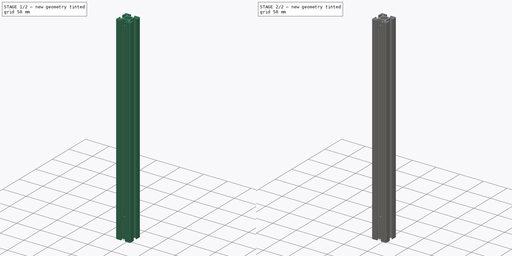
[diagram: build sequence overview — one tinted view per stage of 2, left to right]
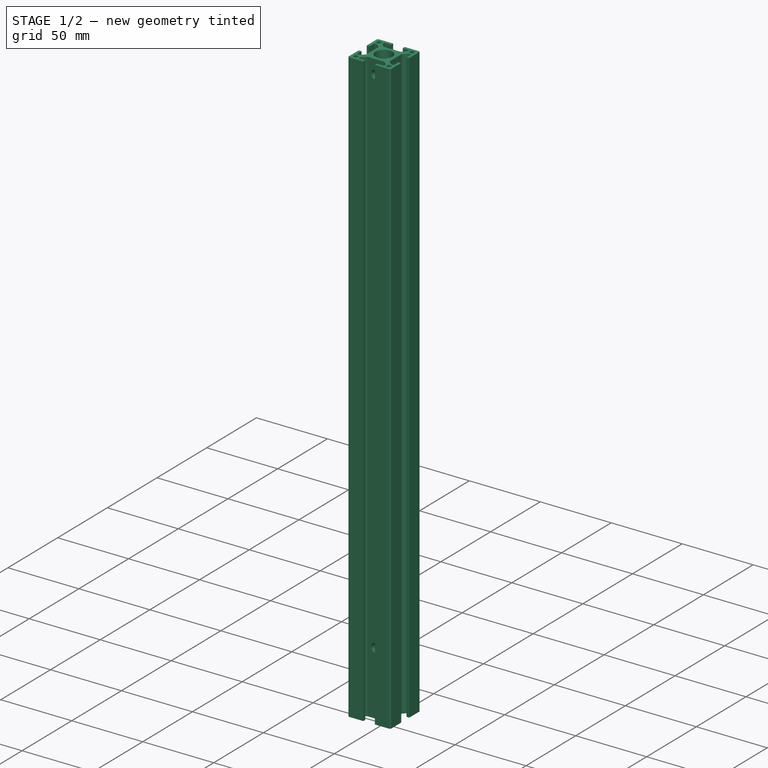
[diagram: stage 1 of 2 — iso view after this stage's code; geometry added in this stage tinted green]
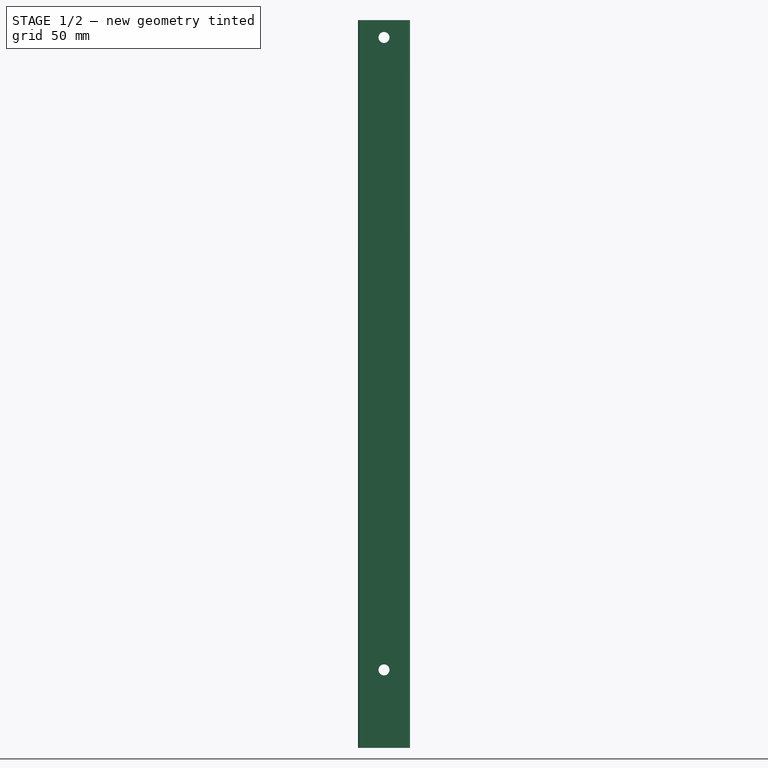
[diagram: stage 1 of 2 — front view after this stage's code; geometry added in this stage tinted green]
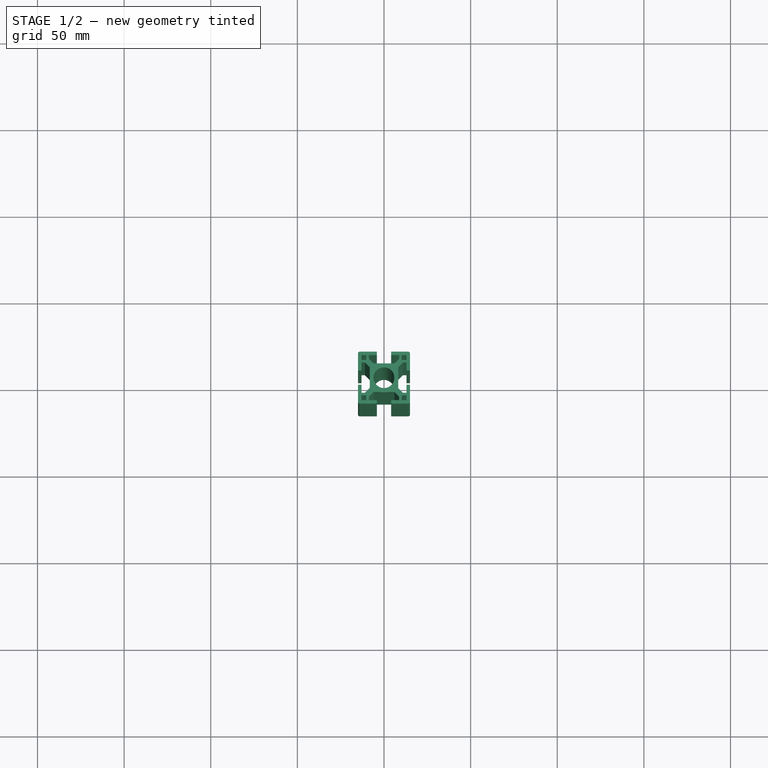
[diagram: stage 1 of 2 — top view after this stage's code; geometry added in this stage tinted green]
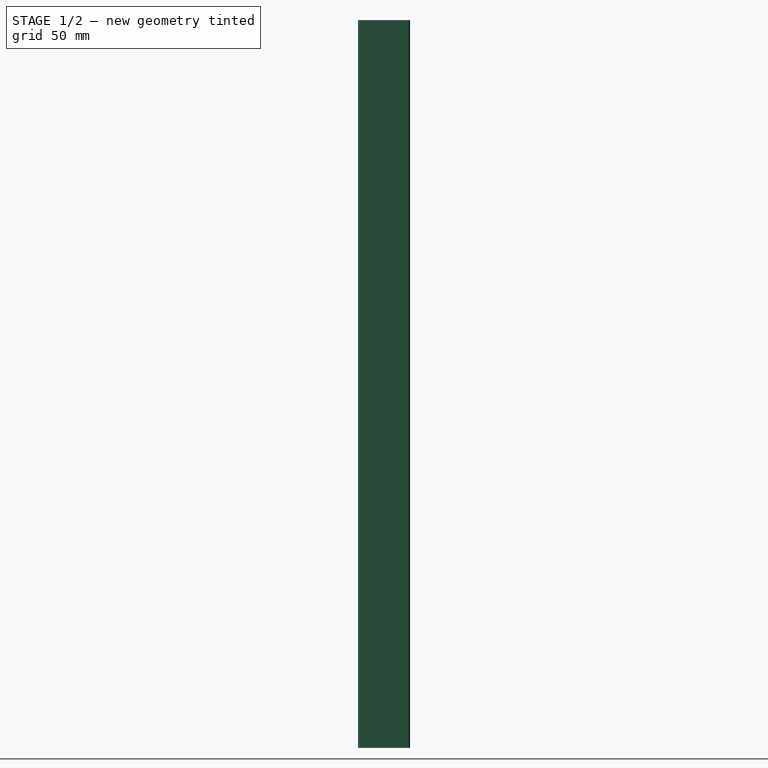
[diagram: stage 1 of 2 — right view after this stage's code; geometry added in this stage tinted green]
FCSTD DOCUMENT  (FreeCAD 0.17R13346 (Git))
Label: Z-Profile_3030
License: All rights reserved
LicenseURL: http://en.wikipedia.org/wiki/All_rights_reserved
objects: Sketcher::SketchObject×3, PartDesign::Pocket×2, PartDesign::Pad×1, PartDesign::Body×1
note: 10 computed .brp shape members not serialized (recipe doc carries the construction recipe); baked Part::Feature solids carry a one-line shape summary decoded from their .brp

FEATURE [Sketcher::SketchObject] Sketch006
  sketch-geometry (65):
    g0: LineSegment StartX=4.1 StartY=-15 StartZ=0 EndX=14 EndY=-15 EndZ=0
    g1: ArcOfCircle CenterX=14 CenterY=-14 CenterZ=0 NormalX=0 NormalY=0 NormalZ=1 AngleXU=-3.14159 Radius=1 StartAngle=1.5708 EndAngle=3.14159
    g2: LineSegment StartX=15 StartY=-14 StartZ=0 EndX=15 EndY=-4.1 EndZ=0
    g3: LineSegment StartX=15 StartY=-4.1 StartZ=0 EndX=13 EndY=-4.1 EndZ=0
    g4: LineSegment StartX=13 StartY=-4.1 StartZ=0 EndX=13 EndY=-8.75 EndZ=0
    g5: LineSegment StartX=13 StartY=-8.75 StartZ=0 EndX=11 EndY=-8.75 EndZ=0
    g6: LineSegment StartX=11 StartY=-8.75 StartZ=0 EndX=8.25 EndY=-6 EndZ=0
    g7: LineSegment StartX=8.25 StartY=-6 StartZ=0 EndX=8.25 EndY=6 EndZ=0
    g8: LineSegment StartX=8.25 StartY=6 StartZ=0 EndX=11 EndY=8.75 EndZ=0
    g9: LineSegment StartX=11 StartY=8.75 StartZ=0 EndX=13 EndY=8.75 EndZ=0
    g10: LineSegment StartX=13 StartY=8.75 StartZ=0 EndX=13 EndY=4.1 EndZ=0
    g11: LineSegment StartX=13 StartY=4.1 StartZ=0 EndX=15 EndY=4.1 EndZ=0
    g12: LineSegment StartX=15 StartY=4.1 StartZ=0 EndX=15 EndY=14 EndZ=0
    g13: ArcOfCircle CenterX=14 CenterY=14 CenterZ=0 NormalX=0 NormalY=0 NormalZ=1 AngleXU=-3.14159 Radius=1 StartAngle=3.14159 EndAngle=4.71239
    g14: LineSegment StartX=14 StartY=15 StartZ=0 EndX=4.1 EndY=15 EndZ=0
    g15: LineSegment StartX=4.1 StartY=15 StartZ=0 EndX=4.1 EndY=13 EndZ=0
    g16: LineSegment StartX=4.1 StartY=13 StartZ=0 EndX=8.75 EndY=13 EndZ=0
    g17: LineSegment StartX=8.75 StartY=13 StartZ=0 EndX=8.75 EndY=11 EndZ=0
    g18: LineSegment StartX=8.75 StartY=11 StartZ=0 EndX=6 EndY=8.25 EndZ=0
    g19: LineSegment StartX=6 StartY=8.25 StartZ=0 EndX=-6 EndY=8.25 EndZ=0
    g20: LineSegment StartX=-6 StartY=8.25 StartZ=0 EndX=-8.75 EndY=11 EndZ=0
    g21: LineSegment StartX=-8.75 StartY=11 StartZ=0 EndX=-8.75 EndY=13 EndZ=0
    g22: LineSegment StartX=-8.75 StartY=13 StartZ=0 EndX=-4.1 EndY=13 EndZ=0
    g23: LineSegment StartX=-4.1 StartY=13 StartZ=0 EndX=-4.1 EndY=15 EndZ=0
    g24: LineSegment StartX=-4.1 StartY=15 StartZ=0 EndX=-14 EndY=15 EndZ=0
    g25: ArcOfCircle CenterX=-14 CenterY=14 CenterZ=0 NormalX=0 NormalY=0 NormalZ=1 AngleXU=-3.14159 Radius=1 StartAngle=4.71239 EndAngle=6.28319
    g26: LineSegment StartX=-15 StartY=14 StartZ=0 EndX=-15 EndY=4.1 EndZ=0
    g27: LineSegment StartX=-15 StartY=4.1 StartZ=0 EndX=-13 EndY=4.1 EndZ=0
    g28: LineSegment StartX=-13 StartY=4.1 StartZ=0 EndX=-13 EndY=8.75 EndZ=0
    g29: LineSegment StartX=-13 StartY=8.75 StartZ=0 EndX=-11 EndY=8.75 EndZ=0
    g30: LineSegment StartX=-11 StartY=8.75 StartZ=0 EndX=-8.25 EndY=6 EndZ=0
    g31: LineSegment StartX=-8.25 StartY=6 StartZ=0 EndX=-8.25 EndY=-6 EndZ=0
    g32: LineSegment StartX=-8.25 StartY=-6 StartZ=0 EndX=-11 EndY=-8.75 EndZ=0
    g33: LineSegment StartX=-11 StartY=-8.75 StartZ=0 EndX=-13 EndY=-8.75 EndZ=0
    g34: LineSegment StartX=-13 StartY=-8.75 StartZ=0 EndX=-13 EndY=-4.1 EndZ=0
    g35: LineSegment StartX=-13 StartY=-4.1 StartZ=0 EndX=-15 EndY=-4.1 EndZ=0
    g36: LineSegment StartX=-15 StartY=-4.1 StartZ=0 EndX=-15 EndY=-14 EndZ=0
    g37: ArcOfCircle CenterX=-14 CenterY=-14 CenterZ=0 NormalX=0 NormalY=0 NormalZ=1 AngleXU=-3.14159 Radius=1 StartAngle=2.5459e-08 EndAngle=1.5708
    g38: LineSegment StartX=-14 StartY=-15 StartZ=0 EndX=-4.1 EndY=-15 EndZ=0
    g39: LineSegment StartX=-4.1 StartY=-15 StartZ=0 EndX=-4.1 EndY=-13 EndZ=0
    g40: LineSegment StartX=-4.1 StartY=-13 StartZ=0 EndX=-8.75 EndY=-13 EndZ=0
    g41: LineSegment StartX=-8.75 StartY=-13 StartZ=0 EndX=-8.75 EndY=-11 EndZ=0
    g42: LineSegment StartX=-8.75 StartY=-11 StartZ=0 EndX=-6 EndY=-8.25 EndZ=0
    g43: LineSegment StartX=-6 StartY=-8.25 StartZ=0 EndX=6 EndY=-8.25 EndZ=0
    g44: LineSegment StartX=6 StartY=-8.25 StartZ=0 EndX=8.75 EndY=-11 EndZ=0
    g45: LineSegment StartX=8.75 StartY=-11 StartZ=0 EndX=8.75 EndY=-13 EndZ=0
    g46: LineSegment StartX=8.75 StartY=-13 StartZ=0 EndX=4.1 EndY=-13 EndZ=0
    g47: LineSegment StartX=4.1 StartY=-13 StartZ=0 EndX=4.1 EndY=-15 EndZ=0
    g48: Circle CenterX=0 CenterY=0 CenterZ=0 NormalX=0 NormalY=0 NormalZ=1 AngleXU=0 Radius=6
    g49: LineSegment StartX=-10.25 StartY=-10.25 StartZ=0 EndX=-13 EndY=-10.25 EndZ=0
    g50: LineSegment StartX=-13 StartY=-10.25 StartZ=0 EndX=-13 EndY=-13 EndZ=0
    g51: LineSegment StartX=-13 StartY=-13 StartZ=0 EndX=-10.25 EndY=-13 EndZ=0
    g52: LineSegment StartX=-10.25 StartY=-13 StartZ=0 EndX=-10.25 EndY=-10.25 EndZ=0
    g53: LineSegment StartX=10.25 StartY=-10.25 StartZ=0 EndX=13 EndY=-10.25 EndZ=0
    g54: LineSegment StartX=13 StartY=-10.25 StartZ=0 EndX=13 EndY=-13 EndZ=0
    g55: LineSegment StartX=13 StartY=-13 StartZ=0 EndX=10.25 EndY=-13 EndZ=0
    g56: LineSegment StartX=10.25 StartY=-13 StartZ=0 EndX=10.25 EndY=-10.25 EndZ=0
    g57: LineSegment StartX=10.25 StartY=13 StartZ=0 EndX=13 EndY=13 EndZ=0
    g58: LineSegment StartX=13 StartY=13 StartZ=0 EndX=13 EndY=10.25 EndZ=0
    g59: LineSegment StartX=13 StartY=10.25 StartZ=0 EndX=10.25 EndY=10.25 EndZ=0
    g60: LineSegment StartX=10.25 StartY=10.25 StartZ=0 EndX=10.25 EndY=13 EndZ=0
    g61: LineSegment StartX=-13 StartY=13 StartZ=0 EndX=-10.25 EndY=13 EndZ=0
    g62: LineSegment StartX=-10.25 StartY=13 StartZ=0 EndX=-10.25 EndY=10.25 EndZ=0
    g63: LineSegment StartX=-10.25 StartY=10.25 StartZ=0 EndX=-13 EndY=10.25 EndZ=0
    g64: LineSegment StartX=-13 StartY=10.25 StartZ=0 EndX=-13 EndY=13 EndZ=0
  constraints (190):
    c: Horizontal(g3)
    c: Horizontal(g11)
    c: Coincident(g13,g14)
    c: Coincident(g15,g16)
    c: Horizontal(g16)
    c: Coincident(g16,g17)
    c: Coincident(g17,g18)
    c: Horizontal(g19)
    c: Coincident(g19,g20)
    c: Coincident(g20,g21)
    c: Coincident(g21,g22)
    c: Horizontal(g22)
    c: Coincident(g22,g23)
    c: Horizontal(g27)
    c: Coincident(g27,g28)
    c: Coincident(g28,g29)
    c: Coincident(g29,g30)
    c: Vertical(g31)
    c: Horizontal(g35)
    c: Coincident(g36,g37)
    c: Vertical(g26)
    c: DistanceX(g25) = -15
    c: DistanceY(g13) = 15
    c: DistanceY(g24) = 15
    c: Horizontal(g24)
    c: Vertical(g15)
    c: Vertical(g23)
    c: DistanceX(g22,g15) = 8.2
    c: Equal(g1,g37)
    c: Radius(g25) = 1
    c: Coincident(g24,g23)
    c: Horizontal(g14)
    c: Coincident(g14,g15)
    c: Coincident(g27,g26)
    c: Vertical(g47)
    c: Vertical(g39)
    c: Coincident(g48,g-1)
    c: Radius(g48) = 6
    c: Parallel(g20,g30)
    c: Parallel(g8,g18)
    c: Horizontal(g29)
    c: Vertical(g28)
    c: Vertical(g21)
    c: Vertical(g17)
    c: Equal(g28,g22)
    c: Equal(g22,g16)
    c: Equal(g16,g10)
    c: Equal(g29,g21)
    c: Equal(g21,g17)
    c: Equal(g17,g9)
    c: Equal(g27,g23)
    c: Equal(g23,g15)
    c: Equal(g15,g11)
    c: DistanceX(g27,g27) = 2
    c: DistanceY(g33,g28) = 17.5
    c: Equal(g41,g33)
    c: Equal(g33,g45)
    c: Equal(g45,g5)
    c: Equal(g5,g9)
    c: Equal(g9,g17)
    c: Equal(g17,g21)
    c: Equal(g21,g29)
    c: DistanceX(g30,g-1) = 8.25
    c: Coincident(g31,g30)
    c: Coincident(g31,g32)
    c: Coincident(g33,g32)
    c: Coincident(g7,g8)
    c: Coincident(g6,g7)
    c: Coincident(g43,g44)
    c: Coincident(g42,g43)
    c: DistanceY(g-1,g19) = 8.25
    c: Equal(g26,g24)
    c: Equal(g24,g14)
    c: Equal(g14,g12)
    c: Equal(g12,g2)
    c: Equal(g2,g0)
    c: Equal(g0,g38)
    c: Equal(g38,g36)
    c: Coincident(g19,g18)
    c: Vertical(g7)
    c: Equal(g31,g19)
    c: Equal(g19,g7)
    c: Equal(g7,g43)
    c: Coincident(g40,g41)
    c: Horizontal(g40)
    c: Coincident(g41,g42)
    c: Coincident(g44,g45)
    c: Coincident(g45,g46)
    c: Horizontal(g46)
    c: Coincident(g46,g47)
    c: Equal(g27,g35)
    c: Equal(g35,g39)
    c: Equal(g39,g47)
    c: Equal(g47,g3)
    c: Coincident(g39,g40)
    c: Coincident(g0,g47)
    c: Coincident(g33,g34)
    c: Horizontal(g33)
    c: Vertical(g34)
    c: Coincident(g34,g35)
    c: Coincident(g5,g6)
    c: Horizontal(g0)
    c: Coincident(g4,g5)
    c: Vertical(g4)
    c: Coincident(g3,g4)
    c: Coincident(g35,g36)
    c: Vertical(g36)
    c: PointOnObject(g35,g26)
    c: Vertical(g12)
    c: Coincident(g2,g3)
    c: PointOnObject(g2,g12)
    c: Coincident(g38,g39)
    c: Horizontal(g38)
    c: PointOnObject(g38,g0)
    c: Coincident(g8,g9)
    c: Coincident(g9,g10)
    c: Vertical(g10)
    c: Horizontal(g9)
    c: Vertical(g2)
    c: Parallel(g32,g42)
    c: Parallel(g44,g6)
    c: Symmetric(g37,g1,g-2)
    c: Symmetric(g25,g37,g-1)
    c: Vertical(g45)
    c: Horizontal(g5)
    c: Vertical(g41)
    c: Symmetric(g13,g1,g-1)
    c: Coincident(g49,g50)
    c: Coincident(g50,g51)
    c: Coincident(g51,g52)
    c: Coincident(g52,g49)
    c: Horizontal(g49)
    c: Horizontal(g51)
    c: Vertical(g50)
    c: Vertical(g52)
    c: Coincident(g53,g54)
    c: Coincident(g54,g55)
    c: Coincident(g55,g56)
    c: Coincident(g56,g53)
    c: Horizontal(g53)
    c: Horizontal(g55)
    c: Vertical(g54)
    c: Vertical(g56)
    c: Coincident(g57,g58)
    c: Coincident(g58,g59)
    c: Coincident(g59,g60)
    c: Coincident(g60,g57)
    c: Horizontal(g57)
    c: Horizontal(g59)
    c: Vertical(g58)
    c: Vertical(g60)
    c: Coincident(g61,g62)
    c: Coincident(g62,g63)
    c: Coincident(g63,g64)
    c: Coincident(g64,g61)
    c: Horizontal(g61)
    c: Horizontal(g63)
    c: Vertical(g62)
    c: Vertical(g64)
    c: Equal(g61,g62)
    c: Equal(g62,g57)
    c: Equal(g57,g60)
    c: Equal(g60,g53)
    c: Equal(g53,g56)
    c: Equal(g56,g49)
    c: Equal(g49,g52)
    c: DistanceY(g50,g50) = 2.75
    c: Symmetric(g49,g62,g-1)
    c: Symmetric(g49,g53,g-2)
    c: Symmetric(g53,g59,g-1)
    c: DistanceX(g49) = -10.25
    c: DistanceY(g49) = -10.25
    c: Coincident(g10,g11)
    c: Coincident(g12,g11)
    c: Symmetric(g19,g18,g-2)
    c: Symmetric(g7,g6,g-1)
    c: Horizontal(g43)
    c: Symmetric(g42,g43,g-2)
    c: Symmetric(g31,g30,g-1)
    c: DistanceX(g21,g16) = 17.5
    c: DistanceY(g4,g9) = 17.5
    c: DistanceX(g40,g45) = 17.5
    c: DistanceX(g38,g0) = 8.2
    c: DistanceX(g43,g43) = 12
    c: Tangent(g24,g25) = -1.5708
    c: Tangent(g25,g26) = -1.5708
    c: Tangent(g12,g13) = -1.5708
    c: Tangent(g0,g1) = -1.5708
    c: Tangent(g1,g2) = -1.5708
    c: Coincident(g38,g37)
FEATURE [PartDesign::Pad] Pad
  Length = 420
  Length2 = 100
  Profile = -> Sketch006
  Type = 0
FEATURE [Sketcher::SketchObject] Sketch
  MapMode = 5
  Placement = pos=(0,-8.25,0) rot=(1,0,0;1.5708rad)
  Support = -> [Pad]
  sketch-geometry (2):
    g0: Circle CenterX=0 CenterY=45 CenterZ=0 NormalX=0 NormalY=0 NormalZ=1 AngleXU=0 Radius=3.175
    g1: Circle CenterX=0 CenterY=410 CenterZ=0 NormalX=0 NormalY=0 NormalZ=1 AngleXU=0 Radius=3.175
  constraints (6):
    c: PointOnObject(g0,g-2)
    c: PointOnObject(g1,g-2)
    c: DistanceY(g0) = 45
    c: Equal(g0,g1)
    c: Radius(g0) = 3.175
    c: DistanceY(g1) = 410
FEATURE [PartDesign::Pocket] Pocket
  BaseFeature = -> Pad
  Length = 5
  Length2 = 100
  Profile = -> Sketch
  Type = 1
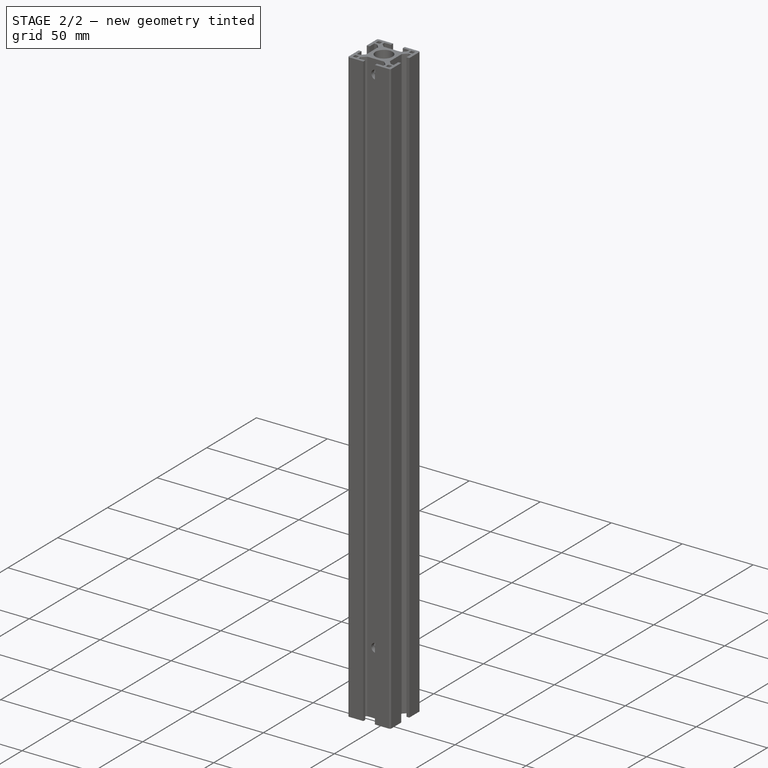
[diagram: stage 2 of 2 — iso view after this stage's code; geometry added in this stage tinted green]
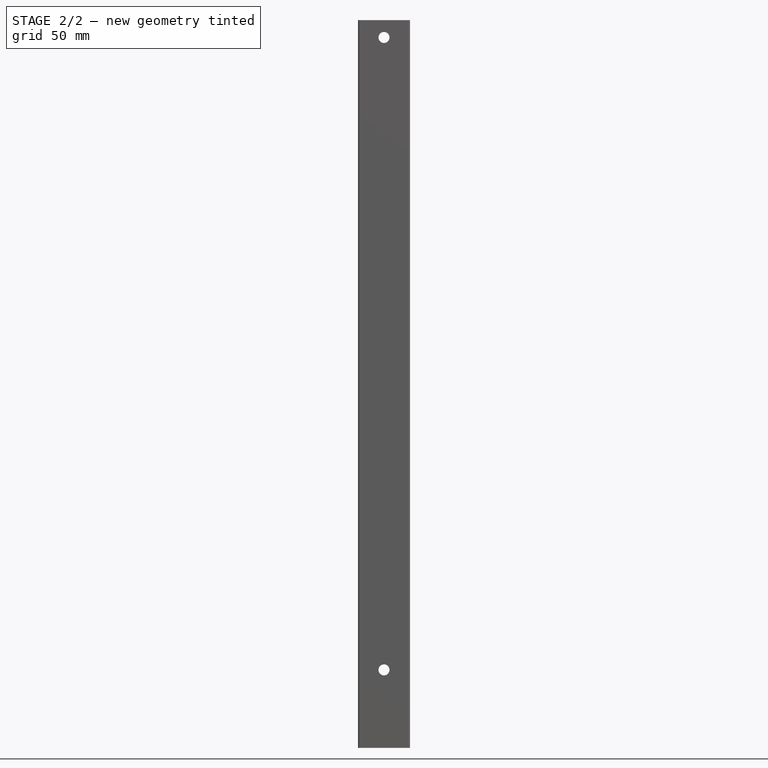
[diagram: stage 2 of 2 — front view after this stage's code; geometry added in this stage tinted green]
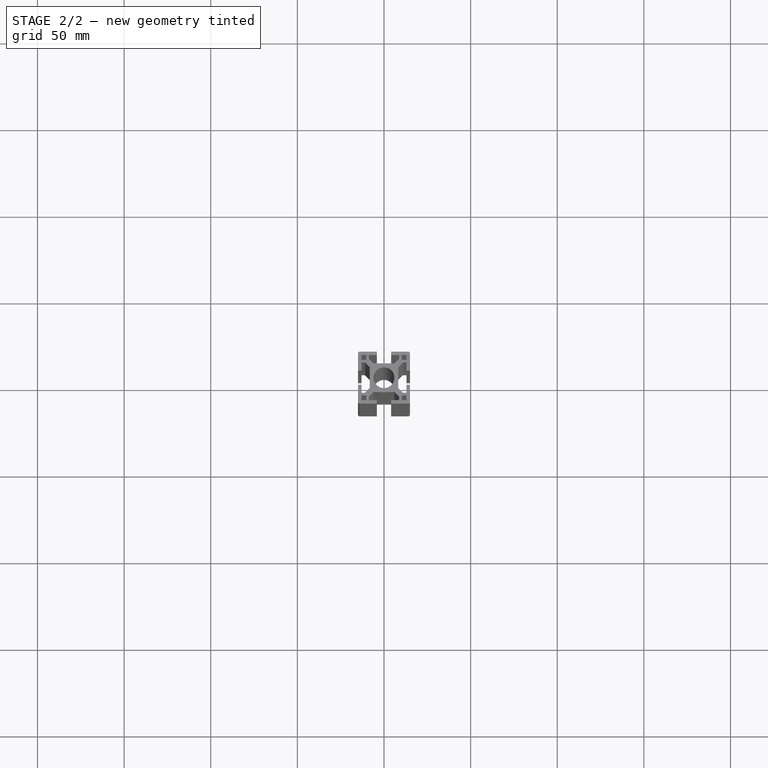
[diagram: stage 2 of 2 — top view after this stage's code; geometry added in this stage tinted green]
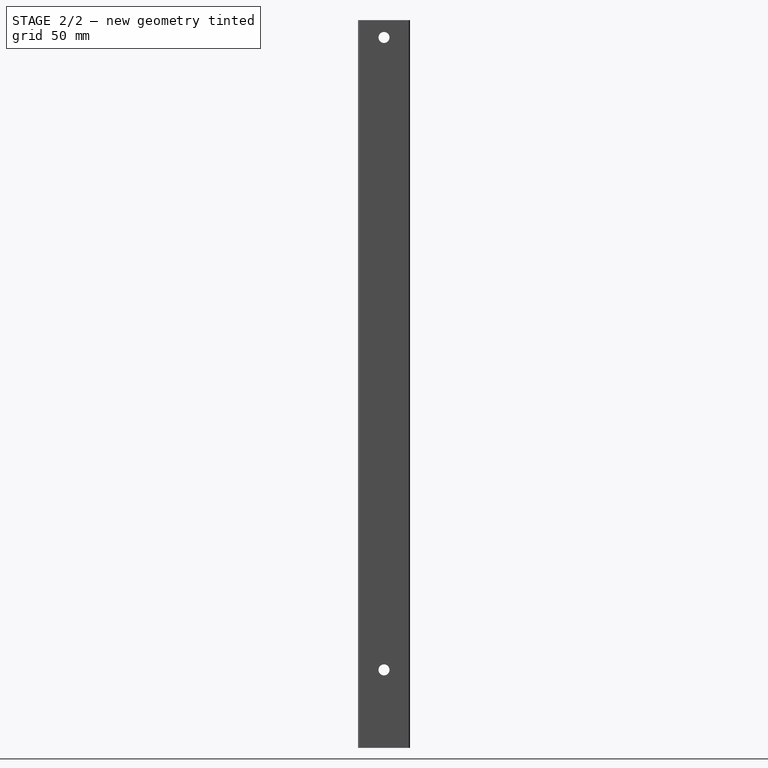
[diagram: stage 2 of 2 — right view after this stage's code; geometry added in this stage tinted green]
FEATURE [Sketcher::SketchObject] Sketch007
  MapMode = 5
  Placement = pos=(-8.25,0,0) rot=(0.57735,-0.57735,-0.57735;2.0944rad)
  Support = -> [Pocket]
  sketch-geometry (2):
    g0: Circle CenterX=0 CenterY=45 CenterZ=0 NormalX=0 NormalY=0 NormalZ=1 AngleXU=0 Radius=3.175
    g1: Circle CenterX=0 CenterY=410 CenterZ=0 NormalX=0 NormalY=0 NormalZ=1 AngleXU=0 Radius=3.175
  constraints (6):
    c: PointOnObject(g0,g-2)
    c: Equal(g1,g0)
    c: Radius(g0) = 3.175
    c: DistanceY(g0) = 45
    c: PointOnObject(g1,g-2)
    c: DistanceY(g1) = 410
FEATURE [PartDesign::Pocket] Pocket001
  BaseFeature = -> Pocket
  Length = 5
  Length2 = 100
  Profile = -> Sketch007
  Type = 1
FEATURE [PartDesign::Body] Body
  Group = -> [Sketch006,Pad,Sketch,Pocket,Sketch007,Pocket001]
  Origin = -> Origin
  Tip = -> Pocket001
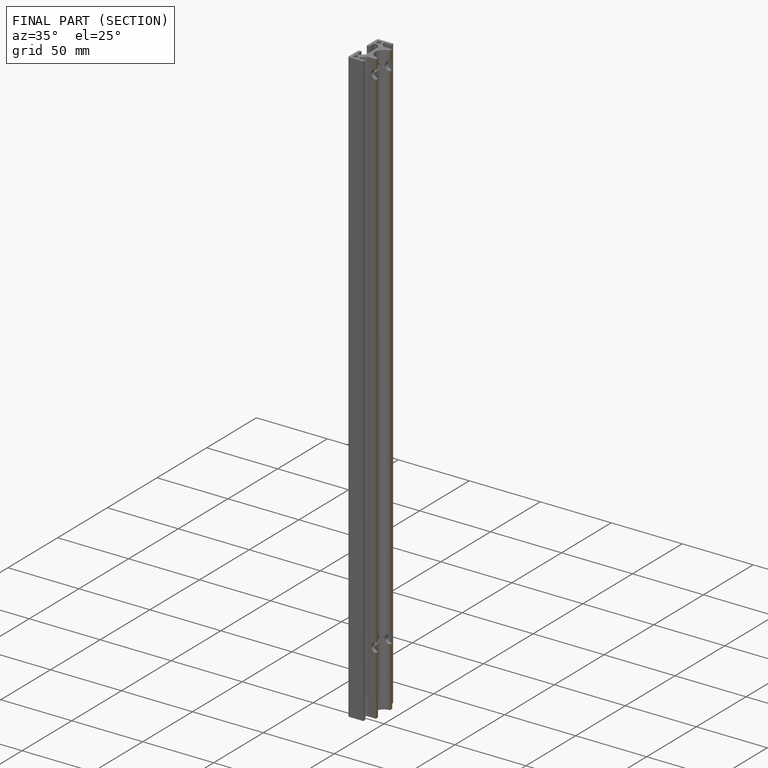
[diagram: finished part — half-section view (interior)]
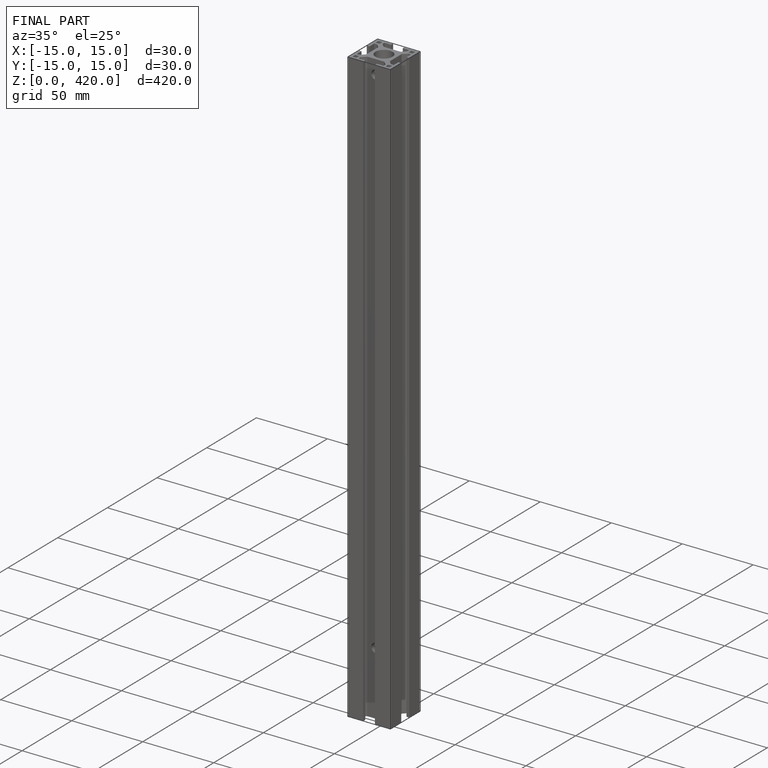
[diagram: finished part — iso view with bounding-box wireframe]
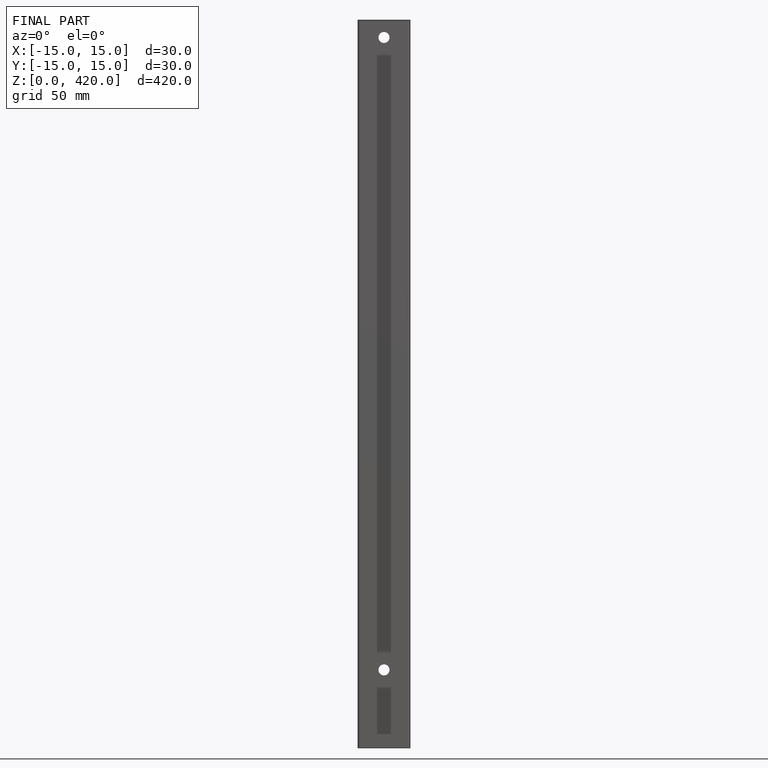
[diagram: finished part — front view with bounding-box wireframe]
